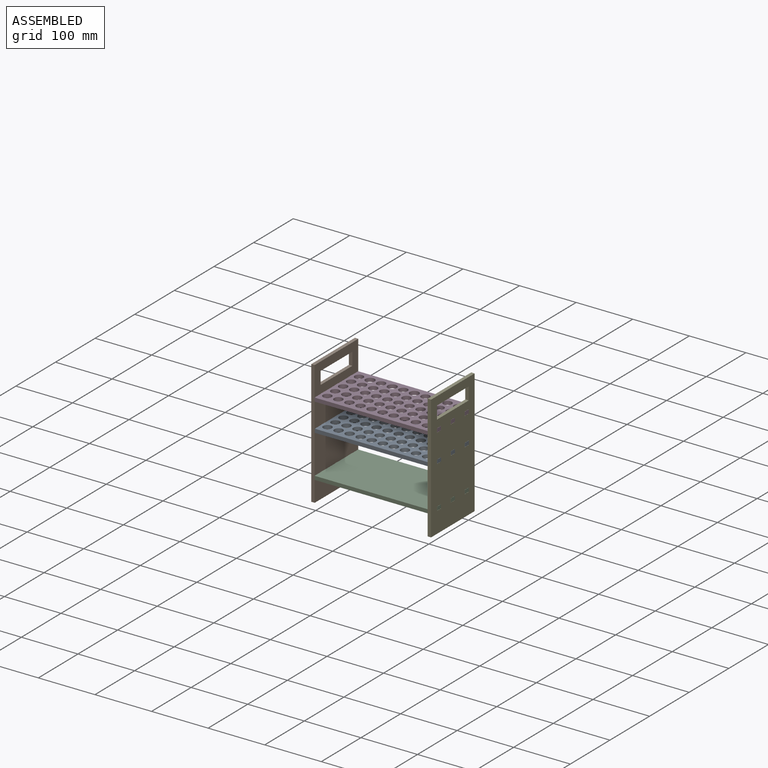
[diagram: assembled view]
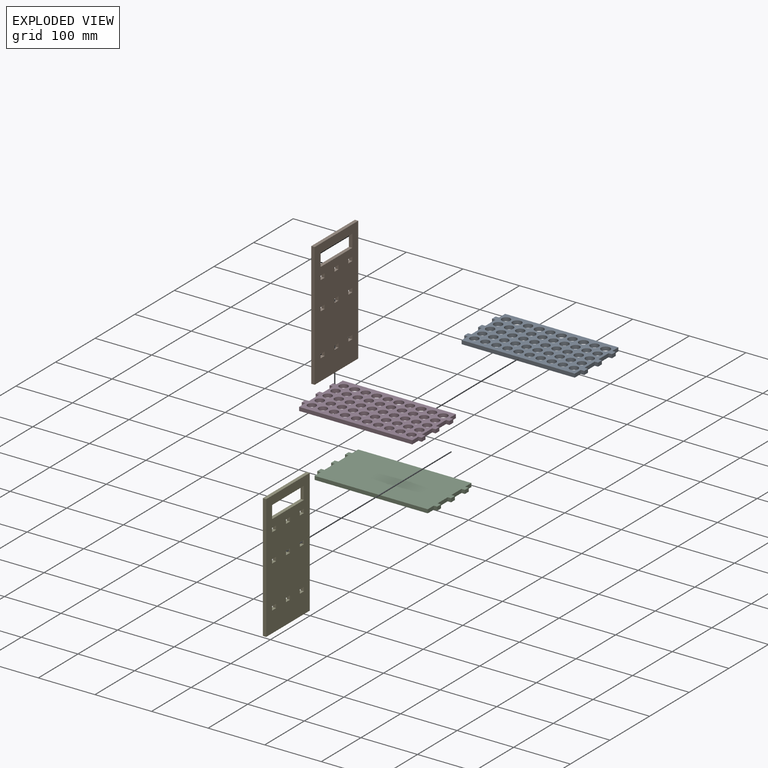
[diagram: exploded view]
GUIDED TOUR — MATED ASSEMBLY (Onshape document 3fb20cde70abd82131adbed9, AutoMate assembly 3fb20cde70abd82131adbed9_d9d2bc0faaa6cfbef1768d05_94ed03822dc0030f9c42033e_default)

This assembly has 5 components, labeled P0..P4 below (a component is one placed occurrence of a part; the same part can appear more than once), held together by 4 mates. A mate is a constraint between two components; its type names the relative motion it leaves free:
  FASTENED — locks the two components together rigidly (no relative motion).
Axis/direction vectors are unit vectors and 'through' points are millimeter coordinates, both in the assembly's world frame.

MATES
  1. FASTENED "Fastened 2": P0 <-> P1, direction (0.000, 1.000, 0.000) through (-113.23, -62.96, 53.62) mm
  2. FASTENED "Fastened 4": P4 <-> P2, direction (0.000, -1.000, 0.000) through (92.77, 6.54, -21.38) mm
  3. FASTENED "Fastened 1": P2 <-> P1, direction (0.000, -1.000, 0.000) through (-113.23, -72.96, -21.38) mm
  4. FASTENED "Fastened 3": P3 <-> P1, direction (0.000, -1.000, 0.000) through (-113.23, -72.96, 103.62) mm

ASSEMBLY ORDER
  1. P2 — the base component [order verified]
  2. P3 [order verified]
  3. P4 [order verified]
  4. P1 [order verified]
  5. P0 [order verified]
Order-tag legend:
  [order verified] — this step's position reverses a verified removal order: the component was checked to insert without passing through the ones already placed.

Of the 5 components, 3 carry the full construction recipe — the FeatureScript program that regenerates the part's solid from scratch; the rest are supplied as boundary geometry only.
Each toured component is shown spotlighted twice — in the assembled view, then in the exploded view, where a leader line traces a displaced component back to its assembled socket (saturated green if recipe-attached, orange if geometry-only; every other component desaturated gray) — followed by its recipe or geometry summary and the mates that hold it.
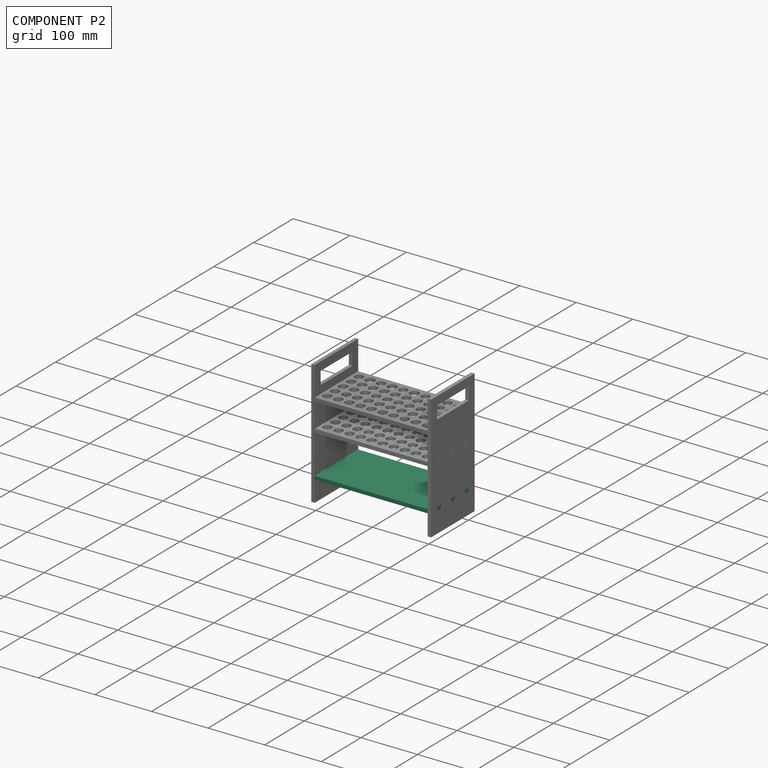
[diagram: component P2 — assembled]
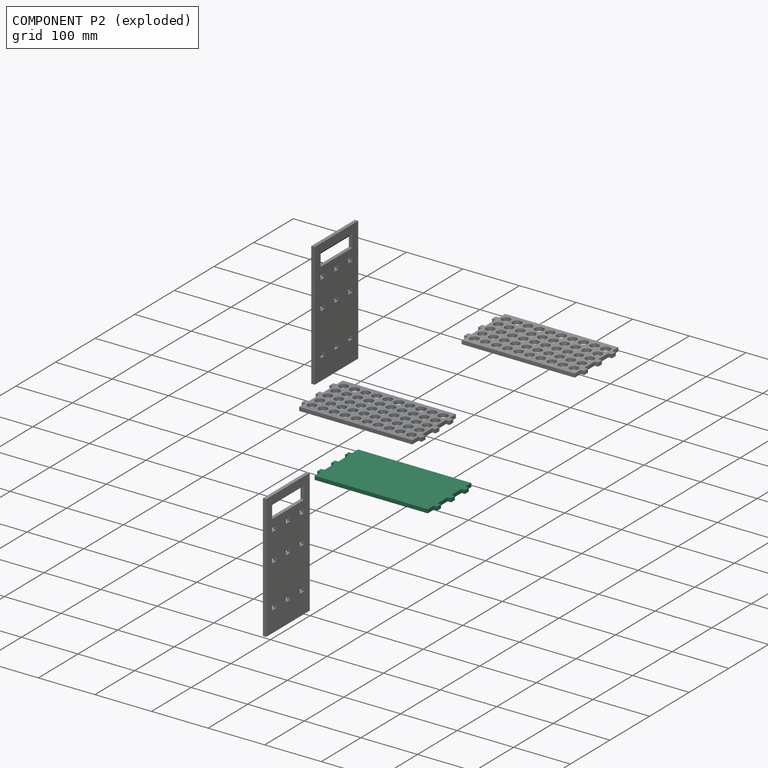
[diagram: component P2 — exploded]
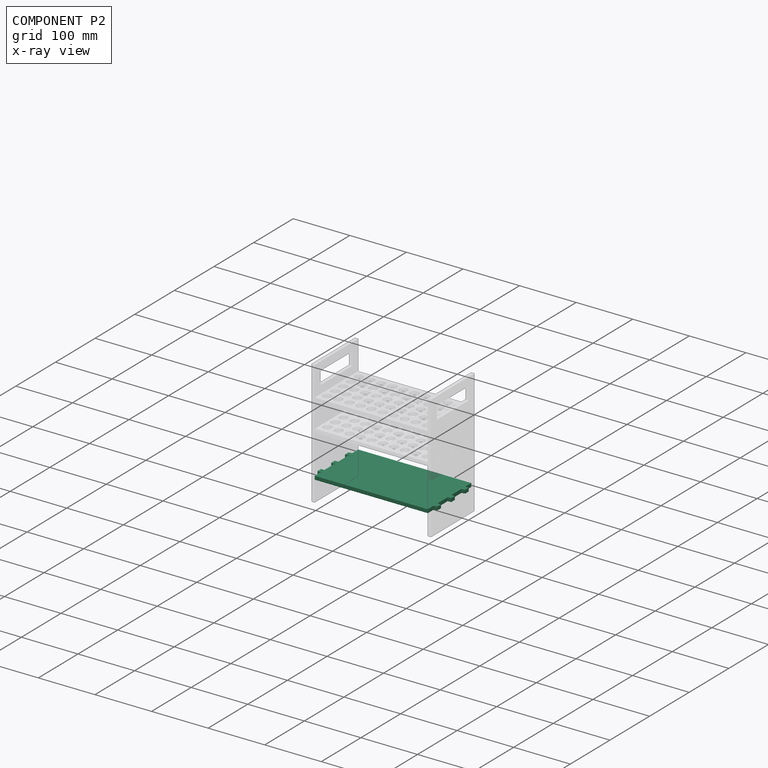
[diagram: component P2 — x-ray view]
COMPONENT P2 — recipe-attached (CADFS 00964119, mesh-verified: the recipe's output STEP matches this component's geometry to below the mesh-comparison resolution (tessellation chordal tolerance ~0.358 mm)).
Held by: FASTENED mate "Fastened 4" to P4; FASTENED mate "Fastened 1" to P1.
Construction recipe (FeatureScript — the CAD program that rebuilds this solid; sketch coordinates are in the units given by the * unit suffixes, e.g. mm):

FeatureScript 1511;
import(path : "onshape/std/geometry.fs", version : "1511.0");
import(path : "onshape/std/common.fs", version : "1511.0");
const mm = millimeter;
const VERTEX = EntityType.VERTEX;
const EDGE = EntityType.EDGE;
const FACE = EntityType.FACE;
const BODY = EntityType.BODY;
function v(x, y){return vector(x, y);}
function OD(order){return orderDisambiguation(order);}
function OSD(set){return originalSetDisambiguation(set);}
function TD(topology){return topologyDisambiguation(topology);}
function TDD(query){return trueDependencyDisambiguation(query);}
function sQuery(a, b, c) {return sketchEntityQuery(a, b, c);}

annotation { "Feature Type Name" : "Feature", "Feature Type Description" : "" }
export const myFeature = defineFeature(function(context is Context, id is Id, definition is map)
    precondition{}
    {
        {
            var Q0;
            Q0=qCreatedBy(makeId("Top.planeOp"),FACE);
            var sketch = newSketch(context, id + "F0", { "sketchPlane" : qUnion([Q0])});
            skLineSegment(sketch, "E0.bottom", {"start": v(-100, 55) * mm, "end": v(100, 55) * mm});
            skLineSegment(sketch, "E0.top", {"start": v(-100, -55) * mm, "end": v(100, -55) * mm});
            skLineSegment(sketch, "E0.left", {"start": v(-100, 55) * mm, "end": v(-100, -55) * mm});
            skLineSegment(sketch, "E0.right", {"start": v(100, 55) * mm, "end": v(100, -55) * mm});
            skPoint(sketch, "E0.middle", {"position": v(0, 0) * mm});
            skSolve(sketch);
        }
        {
            var Q0;
            Q0=makeQuery(id+"F0.imprint","IMPRINT",FACE,{"disambiguationData":[TD([[makeQuery(id+"F0.imprint","IMPRINT",EDGE,{"derivedFrom":sQuery(id+"F0.wireOp",EDGE,"E0.bottom")}),-1.0]])]});
            extrude(context, id + "F1", {"entities" : qUnion([Q0]), "depth" : 6.5 * mm, "offsetDistance" : 25 * mm});
        }
        {
            var Q0;
            Q0=makeQuery(id+"F1.opExtrude","SWEPT_FACE",FACE,{"disambiguationData":[OSD([sQuery(id+"F0.wireOp",EDGE,"E0.left")])]});
            var sketch = newSketch(context, id + "F2", { "sketchPlane" : qUnion([Q0])});
            skLineSegment(sketch, "E1", {"start": v(-55, 3.25) * mm, "end": v(-35, 3.25) * mm});
            skLineSegment(sketch, "E2", {"start": v(-35, 3.25) * mm, "end": v(0, 3.25) * mm});
            skLineSegment(sketch, "E3", {"start": v(0, 3.25) * mm, "end": v(35, 3.25) * mm});
            skLineSegment(sketch, "E4", {"start": v(35, 3.25) * mm, "end": v(55, 3.25) * mm});
            skLineSegment(sketch, "E5.bottom", {"start": v(-39.75, 6.5) * mm, "end": v(-30.25, 6.5) * mm});
            skLineSegment(sketch, "E5.top", {"start": v(-39.75, 0) * mm, "end": v(-30.25, 0) * mm});
            skLineSegment(sketch, "E5.left", {"start": v(-39.75, 6.5) * mm, "end": v(-39.75, 0) * mm});
            skLineSegment(sketch, "E5.right", {"start": v(-30.25, 6.5) * mm, "end": v(-30.25, 0) * mm});
            skPoint(sketch, "E5.middle", {"position": v(-35, 3.25) * mm});
            skLineSegment(sketch, "E6.bottom", {"start": v(-4.75, 6.5) * mm, "end": v(4.75, 6.5) * mm});
            skLineSegment(sketch, "E6.top", {"start": v(-4.75, 0) * mm, "end": v(4.75, 0) * mm});
            skLineSegment(sketch, "E6.left", {"start": v(-4.75, 6.5) * mm, "end": v(-4.75, 0) * mm});
            skLineSegment(sketch, "E6.right", {"start": v(4.75, 6.5) * mm, "end": v(4.75, 0) * mm});
            skPoint(sketch, "E6.middle", {"position": v(0, 3.25) * mm});
            skLineSegment(sketch, "E7.bottom", {"start": v(39.75, 6.5) * mm, "end": v(30.25, 6.5) * mm});
            skLineSegment(sketch, "E7.top", {"start": v(39.75, 0) * mm, "end": v(30.25, 0) * mm});
            skLineSegment(sketch, "E7.left", {"start": v(39.75, 6.5) * mm, "end": v(39.75, 0) * mm});
            skLineSegment(sketch, "E7.right", {"start": v(30.25, 6.5) * mm, "end": v(30.25, 0) * mm});
            skPoint(sketch, "E7.middle", {"position": v(35, 3.25) * mm});
            skSolve(sketch);
        }
        {
            var Q0;
            {var subQ0=sQuery(id+"F2.wireOp",EDGE,"E5.bottom");Q0=makeQuery(id+"F2.imprint","IMPRINT",FACE,{"disambiguationData":[TD([[makeQuery(id+"F2.imprint","IMPRINT",EDGE,{"derivedFrom":subQ0}),-1.0]])]});}
            var Q1;
            {var subQ1=sQuery(id+"F2.wireOp",EDGE,"E5.top");Q1=makeQuery(id+"F2.imprint","IMPRINT",FACE,{"disambiguationData":[TD([[makeQuery(id+"F2.imprint","IMPRINT",EDGE,{"derivedFrom":subQ1}),1.0]])]});}
            var Q2;
            {var subQ1=sQuery(id+"F2.wireOp",EDGE,"E6.bottom");Q2=makeQuery(id+"F2.imprint","IMPRINT",FACE,{"disambiguationData":[TD([[makeQuery(id+"F2.imprint","IMPRINT",EDGE,{"derivedFrom":subQ1}),-1.0]])]});}
            var Q3;
            {var subQ0=sQuery(id+"F2.wireOp",EDGE,"E6.top");Q3=makeQuery(id+"F2.imprint","IMPRINT",FACE,{"disambiguationData":[TD([[makeQuery(id+"F2.imprint","IMPRINT",EDGE,{"derivedFrom":subQ0}),1.0]])]});}
            var Q4;
            {var subQ1=sQuery(id+"F2.wireOp",EDGE,"E7.bottom");Q4=makeQuery(id+"F2.imprint","IMPRINT",FACE,{"disambiguationData":[TD([[makeQuery(id+"F2.imprint","IMPRINT",EDGE,{"derivedFrom":subQ1}),-1.0]])]});}
            var Q5;
            {var subQ1=sQuery(id+"F2.wireOp",EDGE,"E7.top");Q5=makeQuery(id+"F2.imprint","IMPRINT",FACE,{"disambiguationData":[TD([[makeQuery(id+"F2.imprint","IMPRINT",EDGE,{"derivedFrom":subQ1}),1.0]])]});}
            extrude(context, id + "F3", {"entities" : qUnion([Q0, Q1, Q2, Q3, Q4, Q5]), "operationType" : NewBodyOperationType.ADD, "depth" : 6 * mm, "offsetDistance" : 25 * mm});
        }
        {
            var Q0;
            Q0=makeQuery(id+"F1.opExtrude","SWEPT_FACE",FACE,{"disambiguationData":[OSD([sQuery(id+"F0.wireOp",EDGE,"E0.right")])]});
            var sketch = newSketch(context, id + "F4", { "sketchPlane" : qUnion([Q0])});
            skLineSegment(sketch, "E8", {"start": v(-55, 3.25) * mm, "end": v(-35, 3.25) * mm});
            skLineSegment(sketch, "E9", {"start": v(-35, 3.25) * mm, "end": v(0, 3.25) * mm});
            skLineSegment(sketch, "E10", {"start": v(0, 3.25) * mm, "end": v(35, 3.25) * mm});
            skLineSegment(sketch, "E11.bottom", {"start": v(-39.75, 6.5) * mm, "end": v(-30.25, 6.5) * mm});
            skLineSegment(sketch, "E11.top", {"start": v(-39.75, 0) * mm, "end": v(-30.25, 0) * mm});
            skLineSegment(sketch, "E11.left", {"start": v(-39.75, 6.5) * mm, "end": v(-39.75, 0) * mm});
            skLineSegment(sketch, "E11.right", {"start": v(-30.25, 6.5) * mm, "end": v(-30.25, 0) * mm});
            skPoint(sketch, "E11.middle", {"position": v(-35, 3.25) * mm});
            skLineSegment(sketch, "E12.bottom", {"start": v(-4.75, 6.5) * mm, "end": v(4.75, 6.5) * mm});
            skLineSegment(sketch, "E12.top", {"start": v(-4.75, 0) * mm, "end": v(4.75, 0) * mm});
            skLineSegment(sketch, "E12.left", {"start": v(-4.75, 6.5) * mm, "end": v(-4.75, 0) * mm});
            skLineSegment(sketch, "E12.right", {"start": v(4.75, 6.5) * mm, "end": v(4.75, 0) * mm});
            skPoint(sketch, "E12.middle", {"position": v(0, 3.25) * mm});
            skLineSegment(sketch, "E13.bottom", {"start": v(39.75, 6.5) * mm, "end": v(30.25, 6.5) * mm});
            skLineSegment(sketch, "E13.top", {"start": v(39.75, 0) * mm, "end": v(30.25, 0) * mm});
            skLineSegment(sketch, "E13.left", {"start": v(39.75, 6.5) * mm, "end": v(39.75, 0) * mm});
            skLineSegment(sketch, "E13.right", {"start": v(30.25, 6.5) * mm, "end": v(30.25, 0) * mm});
            skPoint(sketch, "E13.middle", {"position": v(35, 3.25) * mm});
            skSolve(sketch);
        }
        {
            var Q0;
            {var subQ1=sQuery(id+"F4.wireOp",EDGE,"E11.bottom");Q0=makeQuery(id+"F4.imprint","IMPRINT",FACE,{"disambiguationData":[TD([[makeQuery(id+"F4.imprint","IMPRINT",EDGE,{"derivedFrom":subQ1}),1.0]])]});}
            var Q1;
            {var subQ1=sQuery(id+"F4.wireOp",EDGE,"E11.top");Q1=makeQuery(id+"F4.imprint","IMPRINT",FACE,{"disambiguationData":[TD([[makeQuery(id+"F4.imprint","IMPRINT",EDGE,{"derivedFrom":subQ1}),-1.0]])]});}
            var Q2;
            {var subQ0=sQuery(id+"F4.wireOp",EDGE,"E12.bottom");Q2=makeQuery(id+"F4.imprint","IMPRINT",FACE,{"disambiguationData":[TD([[makeQuery(id+"F4.imprint","IMPRINT",EDGE,{"derivedFrom":subQ0}),1.0]])]});}
            var Q3;
            {var subQ1=sQuery(id+"F4.wireOp",EDGE,"E12.top");Q3=makeQuery(id+"F4.imprint","IMPRINT",FACE,{"disambiguationData":[TD([[makeQuery(id+"F4.imprint","IMPRINT",EDGE,{"derivedFrom":subQ1}),-1.0]])]});}
            var Q4;
            {var subQ1=sQuery(id+"F4.wireOp",EDGE,"E13.bottom");Q4=makeQuery(id+"F4.imprint","IMPRINT",FACE,{"disambiguationData":[TD([[makeQuery(id+"F4.imprint","IMPRINT",EDGE,{"derivedFrom":subQ1}),1.0]])]});}
            extrude(context, id + "F5", {"entities" : qUnion([Q0, Q1, Q2, Q3, Q4]), "operationType" : NewBodyOperationType.ADD, "depth" : 6 * mm, "offsetDistance" : 25 * mm});
        }
    });
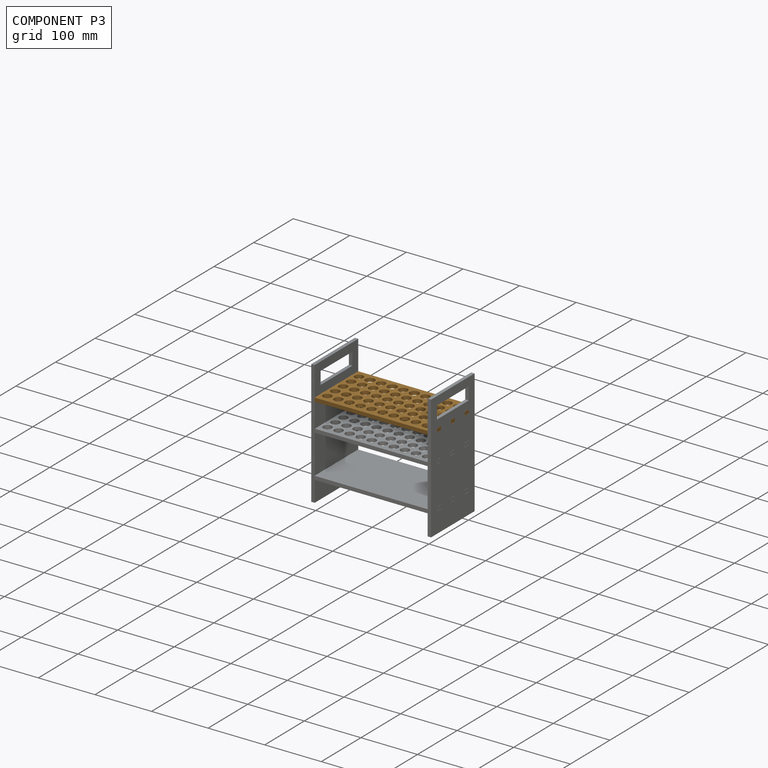
[diagram: component P3 — assembled]
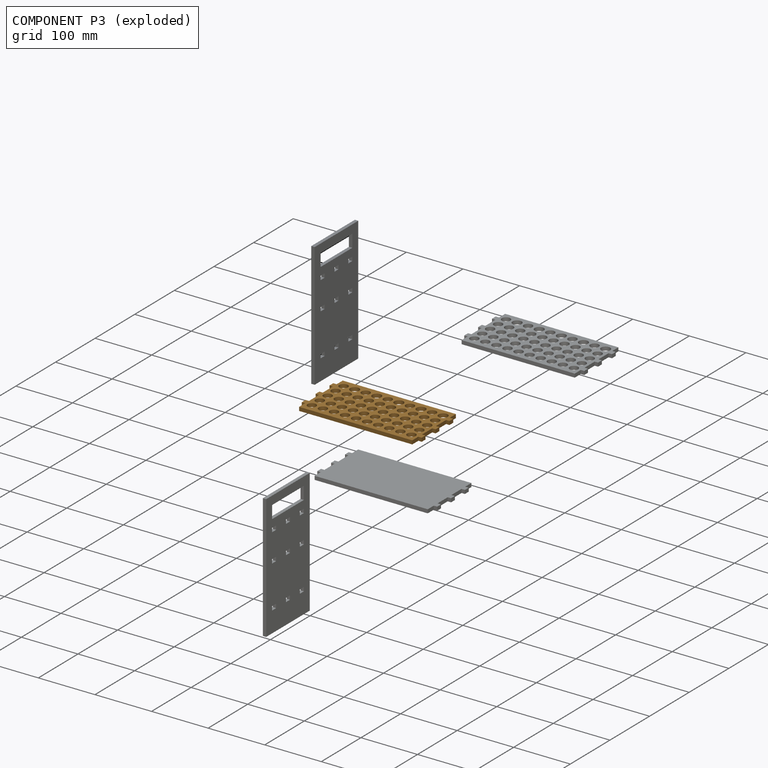
[diagram: component P3 — exploded]
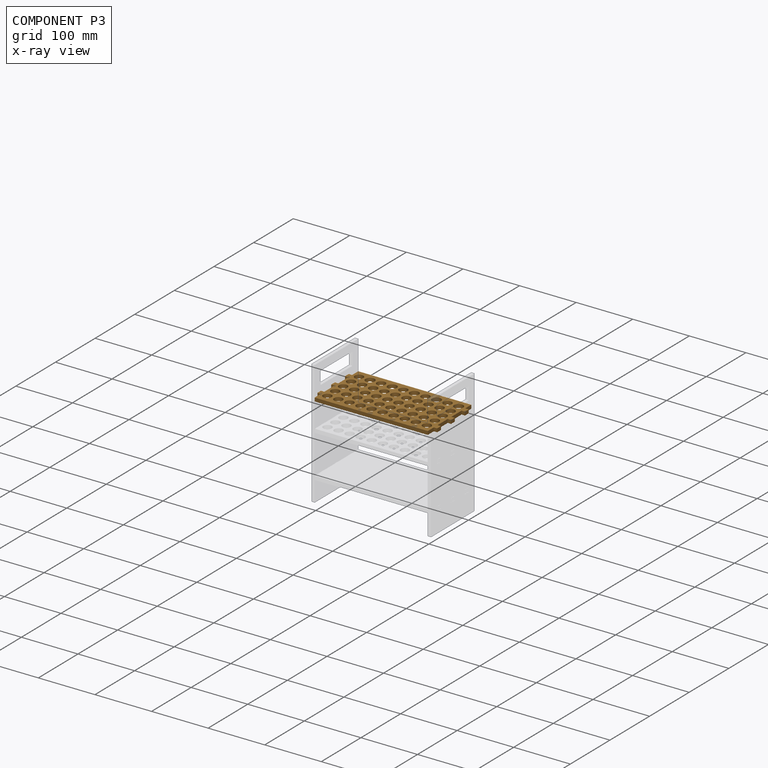
[diagram: component P3 — x-ray view]
COMPONENT P3 — geometry summary (no construction recipe available for this part):
  bounding box: 212.0 x 110.0 x 6.5 mm
  B-rep topology: 1 solid, 80 faces, 508 edges
  volume: 87016 mm^3 (57% of its bounding box)
  symmetry: 2-fold rotationally symmetric about the x axis; 2-fold rotationally symmetric about the y axis; 2-fold rotationally symmetric about the z axis; mirror-symmetric across its x mid-plane, y mid-plane, z mid-plane
Held by: FASTENED mate "Fastened 3" to P1.
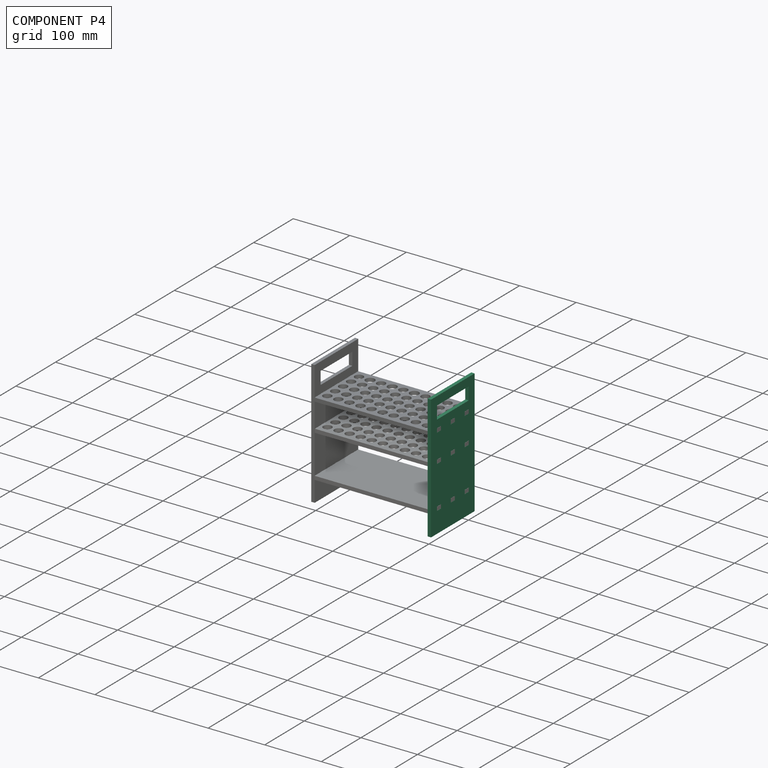
[diagram: component P4 — assembled]
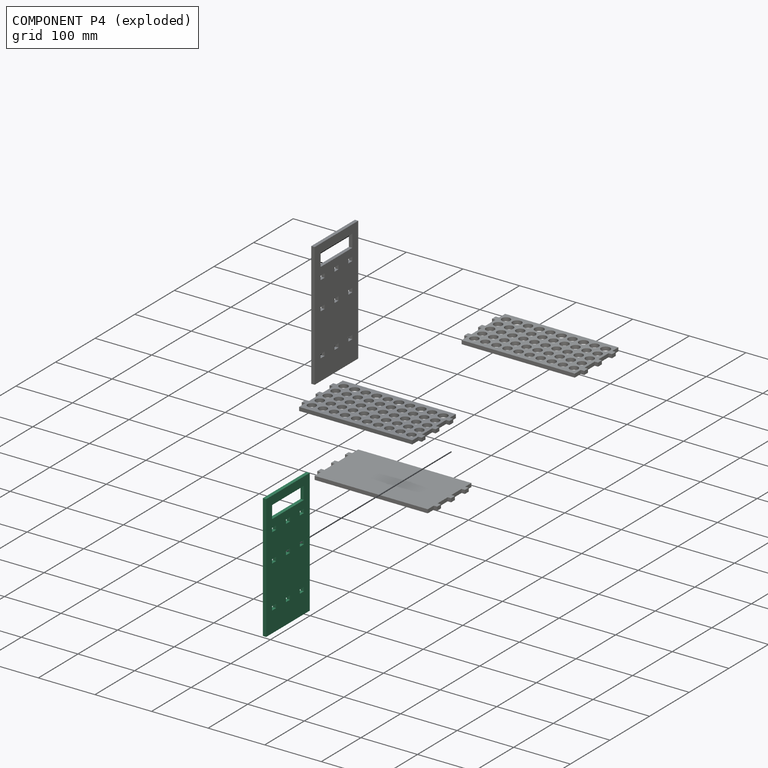
[diagram: component P4 — exploded]
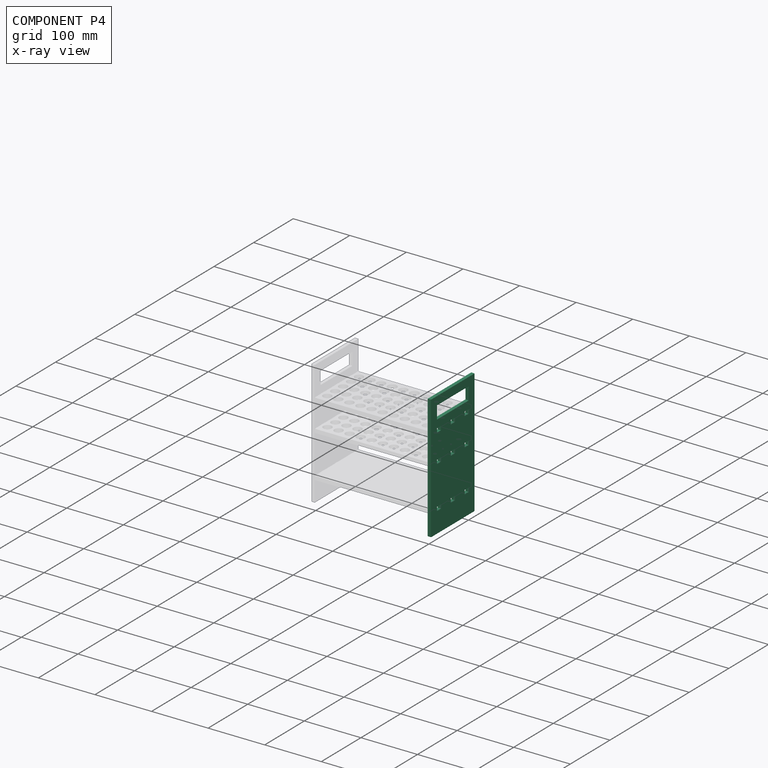
[diagram: component P4 — x-ray view]
COMPONENT P4 — same part as P1 (CADFS 00964117); its construction recipe is shown at P1.
Held by: FASTENED mate "Fastened 4" to P2.
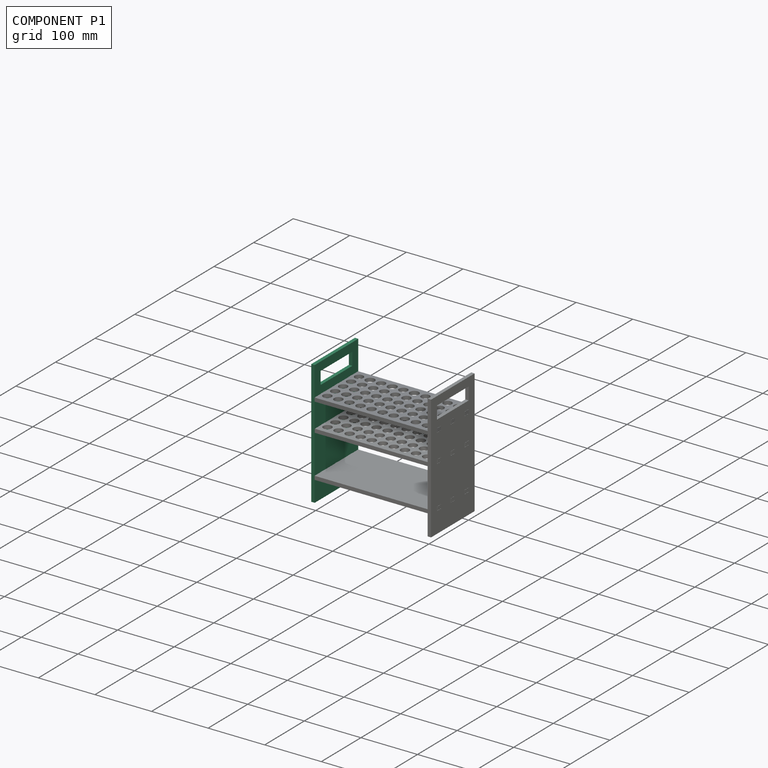
[diagram: component P1 — assembled]
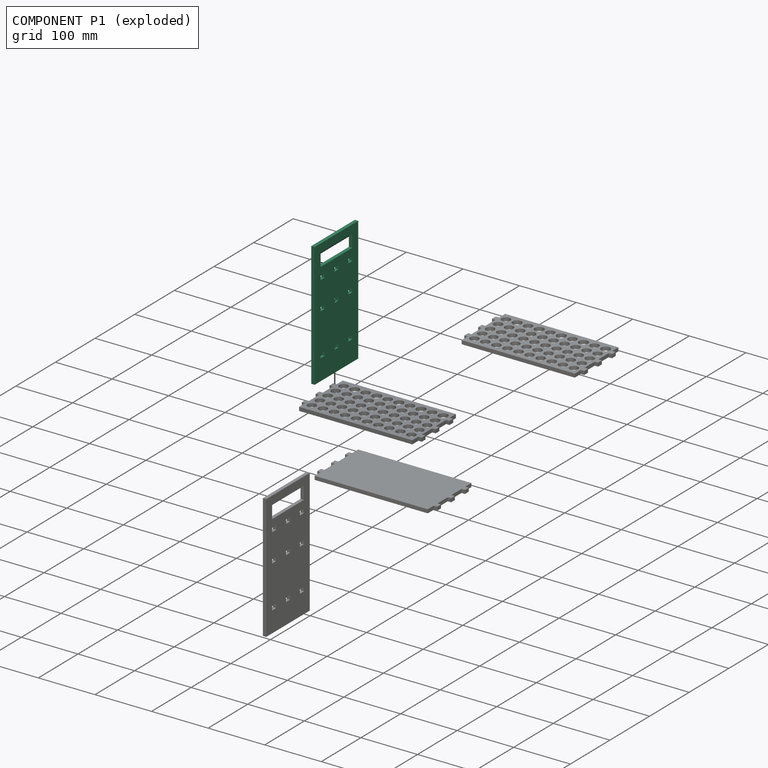
[diagram: component P1 — exploded]
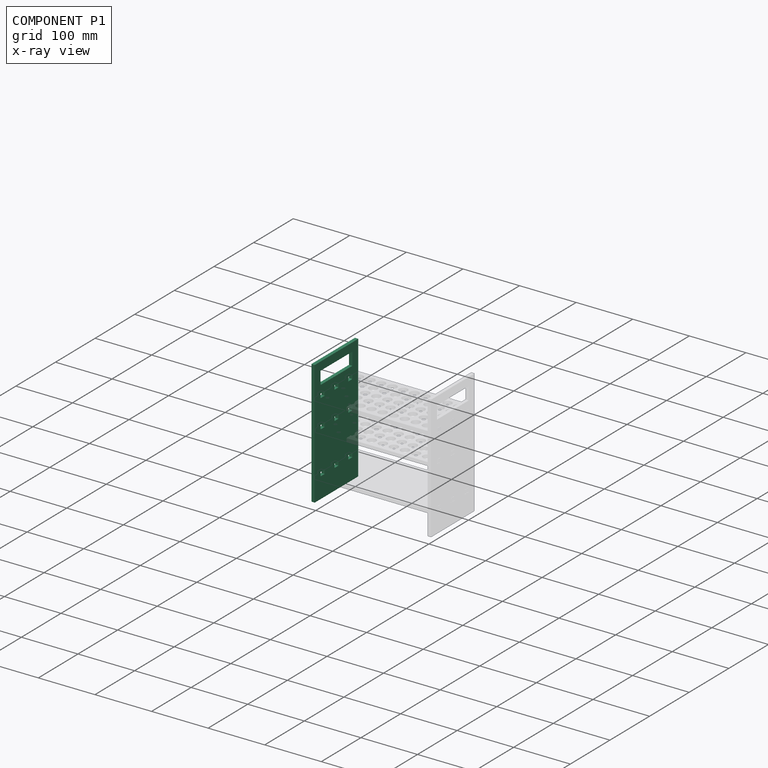
[diagram: component P1 — x-ray view]
COMPONENT P1 — recipe-attached (CADFS 00964117, mesh-verified: the recipe's output STEP matches this component's geometry to below the mesh-comparison resolution (tessellation chordal tolerance ~0.369 mm)).
Held by: FASTENED mate "Fastened 2" to P0; FASTENED mate "Fastened 1" to P2; FASTENED mate "Fastened 3" to P3.
Construction recipe (FeatureScript — the CAD program that rebuilds this solid; sketch coordinates are in the units given by the * unit suffixes, e.g. mm):

FeatureScript 1511;
import(path : "onshape/std/geometry.fs", version : "1511.0");
import(path : "onshape/std/common.fs", version : "1511.0");
const mm = millimeter;
const VERTEX = EntityType.VERTEX;
const EDGE = EntityType.EDGE;
const FACE = EntityType.FACE;
const BODY = EntityType.BODY;
function v(x, y){return vector(x, y);}
function OD(order){return orderDisambiguation(order);}
function OSD(set){return originalSetDisambiguation(set);}
function TD(topology){return topologyDisambiguation(topology);}
function TDD(query){return trueDependencyDisambiguation(query);}
function sQuery(a, b, c) {return sketchEntityQuery(a, b, c);}

annotation { "Feature Type Name" : "Feature", "Feature Type Description" : "" }
export const myFeature = defineFeature(function(context is Context, id is Id, definition is map)
    precondition{}
    {
        {
            var Q0;
            Q0=qCreatedBy(makeId("Right.planeOp"),FACE);
            var sketch = newSketch(context, id + "F0", { "sketchPlane" : qUnion([Q0])});
            skLineSegment(sketch, "E0.bottom", {"start": v(-47.5, 157.22) * mm, "end": v(62.5, 157.22) * mm});
            skLineSegment(sketch, "E0.top", {"start": v(-47.5, -62.78) * mm, "end": v(62.5, -62.78) * mm});
            skLineSegment(sketch, "E0.left", {"start": v(-47.5, 157.22) * mm, "end": v(-47.5, -62.78) * mm});
            skLineSegment(sketch, "E0.right", {"start": v(62.5, 157.22) * mm, "end": v(62.5, -62.78) * mm});
            skLineSegment(sketch, "E1.bottom", {"start": v(37.5, -19.28) * mm, "end": v(47.5, -19.28) * mm});
            skLineSegment(sketch, "E1.top", {"start": v(37.5, -26.28) * mm, "end": v(47.5, -26.28) * mm});
            skLineSegment(sketch, "E1.left", {"start": v(37.5, -19.28) * mm, "end": v(37.5, -26.28) * mm});
            skLineSegment(sketch, "E1.right", {"start": v(47.5, -19.28) * mm, "end": v(47.5, -26.28) * mm});
            skPoint(sketch, "E1.middle", {"position": v(42.5, -22.78) * mm});
            skLineSegment(sketch, "E2.bottom", {"start": v(2.5, -19.28) * mm, "end": v(12.5, -19.28) * mm});
            skLineSegment(sketch, "E2.top", {"start": v(2.5, -26.28) * mm, "end": v(12.5, -26.28) * mm});
            skLineSegment(sketch, "E2.left", {"start": v(2.5, -19.28) * mm, "end": v(2.5, -26.28) * mm});
            skLineSegment(sketch, "E2.right", {"start": v(12.5, -19.28) * mm, "end": v(12.5, -26.28) * mm});
            skPoint(sketch, "E2.middle", {"position": v(7.5, -22.78) * mm});
            skLineSegment(sketch, "E3.bottom", {"start": v(-22.5, -19.28) * mm, "end": v(-32.5, -19.28) * mm});
            skLineSegment(sketch, "E3.top", {"start": v(-22.5, -26.28) * mm, "end": v(-32.5, -26.28) * mm});
            skLineSegment(sketch, "E3.left", {"start": v(-22.5, -19.28) * mm, "end": v(-22.5, -26.28) * mm});
            skLineSegment(sketch, "E3.right", {"start": v(-32.5, -19.28) * mm, "end": v(-32.5, -26.28) * mm});
            skPoint(sketch, "E3.middle", {"position": v(-27.5, -22.78) * mm});
            skLineSegment(sketch, "E4", {"start": v(-27.5, -22.78) * mm, "end": v(42.5, -22.78) * mm});
            skLineSegment(sketch, "E5", {"start": v(-47.5, 130.37) * mm, "end": v(-32.5, 130.37) * mm});
            skLineSegment(sketch, "E6", {"start": v(62.5, 129.84) * mm, "end": v(47.5, 129.84) * mm});
            skLineSegment(sketch, "E7", {"start": v(9.43, 157.22) * mm, "end": v(9.43, 142.22) * mm});
            skLineSegment(sketch, "E8", {"start": v(9.43, 142.22) * mm, "end": v(-32.5, 142.22) * mm});
            skLineSegment(sketch, "E9", {"start": v(-32.5, 142.22) * mm, "end": v(-32.5, 119.72) * mm});
            skLineSegment(sketch, "E10", {"start": v(-32.5, 119.72) * mm, "end": v(47.5, 119.72) * mm});
            skLineSegment(sketch, "E11", {"start": v(47.5, 119.72) * mm, "end": v(47.5, 142.22) * mm});
            skLineSegment(sketch, "E12", {"start": v(47.5, 142.22) * mm, "end": v(9.43, 142.22) * mm});
            skLineSegment(sketch, "E13", {"start": v(30.25, -22.78) * mm, "end": v(30.25, 14.72) * mm});
            skLineSegment(sketch, "E14", {"start": v(30.25, 14.72) * mm, "end": v(-3.72, 14.72) * mm});
            skLineSegment(sketch, "E15.MirrorCS", {"start": v(37.5, 55.72) * mm, "end": v(47.5, 55.72) * mm});
            skLineSegment(sketch, "E16.MirrorCS", {"start": v(-32.5, 48.72) * mm, "end": v(-32.5, 55.72) * mm});
            skLineSegment(sketch, "E17.MirrorCS", {"start": v(37.5, 48.72) * mm, "end": v(37.5, 55.72) * mm});
            skLineSegment(sketch, "E18.MirrorCS", {"start": v(-22.5, 55.72) * mm, "end": v(-32.5, 55.72) * mm});
            skLineSegment(sketch, "E19.MirrorCS", {"start": v(2.5, 48.72) * mm, "end": v(2.5, 55.72) * mm});
            skLineSegment(sketch, "E20.MirrorCS", {"start": v(2.5, 55.72) * mm, "end": v(12.5, 55.72) * mm});
            skLineSegment(sketch, "E21.MirrorCS", {"start": v(37.5, 48.72) * mm, "end": v(47.5, 48.72) * mm});
            skLineSegment(sketch, "E22.MirrorCS", {"start": v(2.5, 48.72) * mm, "end": v(12.5, 48.72) * mm});
            skLineSegment(sketch, "E23.MirrorCS", {"start": v(-22.5, 48.72) * mm, "end": v(-22.5, 55.72) * mm});
            skLineSegment(sketch, "E24.MirrorCS", {"start": v(-22.5, 48.72) * mm, "end": v(-32.5, 48.72) * mm});
            skPoint(sketch, "E25.MirrorP", {"position": v(7.5, 52.22) * mm});
            skPoint(sketch, "E26.MirrorP", {"position": v(-27.5, 52.22) * mm});
            skPoint(sketch, "E27.MirrorP", {"position": v(42.5, 52.22) * mm});
            skLineSegment(sketch, "E28.MirrorCS", {"start": v(47.5, 48.72) * mm, "end": v(47.5, 55.72) * mm});
            skLineSegment(sketch, "E29.MirrorCS", {"start": v(-27.5, 52.22) * mm, "end": v(42.5, 52.22) * mm});
            skLineSegment(sketch, "E30.MirrorCS", {"start": v(12.5, 48.72) * mm, "end": v(12.5, 55.72) * mm});
            skLineSegment(sketch, "E31", {"start": v(24, 52.22) * mm, "end": v(24, 77.22) * mm});
            skLineSegment(sketch, "E32", {"start": v(24, 77.22) * mm, "end": v(-2.6, 77.22) * mm});
            skLineSegment(sketch, "E33.MirrorCS", {"start": v(-22.5, 98.72) * mm, "end": v(-32.5, 98.72) * mm});
            skLineSegment(sketch, "E34.MirrorCS", {"start": v(12.5, 105.72) * mm, "end": v(12.5, 98.72) * mm});
            skLineSegment(sketch, "E35.MirrorCS", {"start": v(37.5, 98.72) * mm, "end": v(47.5, 98.72) * mm});
            skLineSegment(sketch, "E36.MirrorCS", {"start": v(2.5, 98.72) * mm, "end": v(12.5, 98.72) * mm});
            skLineSegment(sketch, "E37.MirrorCS", {"start": v(2.5, 105.72) * mm, "end": v(12.5, 105.72) * mm});
            skLineSegment(sketch, "E38.MirrorCS", {"start": v(37.5, 105.72) * mm, "end": v(47.5, 105.72) * mm});
            skLineSegment(sketch, "E39.MirrorCS", {"start": v(-22.5, 105.72) * mm, "end": v(-22.5, 98.72) * mm});
            skPoint(sketch, "E40.MirrorP", {"position": v(42.5, 102.22) * mm});
            skLineSegment(sketch, "E41.MirrorCS", {"start": v(2.5, 105.72) * mm, "end": v(2.5, 98.72) * mm});
            skLineSegment(sketch, "E42.MirrorCS", {"start": v(47.5, 105.72) * mm, "end": v(47.5, 98.72) * mm});
            skLineSegment(sketch, "E43.MirrorCS", {"start": v(-32.5, 105.72) * mm, "end": v(-32.5, 98.72) * mm});
            skPoint(sketch, "E44.MirrorP", {"position": v(7.5, 102.22) * mm});
            skPoint(sketch, "E45.MirrorP", {"position": v(-27.5, 102.22) * mm});
            skLineSegment(sketch, "E46.MirrorCS", {"start": v(37.5, 105.72) * mm, "end": v(37.5, 98.72) * mm});
            skLineSegment(sketch, "E47.MirrorCS", {"start": v(-27.5, 102.22) * mm, "end": v(42.5, 102.22) * mm});
            skLineSegment(sketch, "E48.MirrorCS", {"start": v(-22.5, 105.72) * mm, "end": v(-32.5, 105.72) * mm});
            skSolve(sketch);
        }
        {
            var Q0;
            {var subQ1=sQuery(id+"F0.wireOp",EDGE,"E5");Q0=makeQuery(id+"F0.imprint","IMPRINT",FACE,{"disambiguationData":[TD([[makeQuery(id+"F0.imprint","IMPRINT",EDGE,{"derivedFrom":subQ1}),1.0]])]});}
            var Q1;
            {var subQ0=sQuery(id+"F0.wireOp",EDGE,"E6");Q1=makeQuery(id+"F0.imprint","IMPRINT",FACE,{"disambiguationData":[TD([[makeQuery(id+"F0.imprint","IMPRINT",EDGE,{"derivedFrom":subQ0}),-1.0]])]});}
            var Q2;
            {var subQ38=sQuery(id+"F0.wireOp",EDGE,"E0.top");Q2=makeQuery(id+"F0.imprint","IMPRINT",FACE,{"disambiguationData":[TD([[makeQuery(id+"F0.imprint","IMPRINT",EDGE,{"derivedFrom":subQ38}),1.0]])]});}
            extrude(context, id + "F1", {"entities" : qUnion([Q0, Q1, Q2]), "depth" : 6 * mm, "offsetDistance" : 25 * mm});
        }
    });
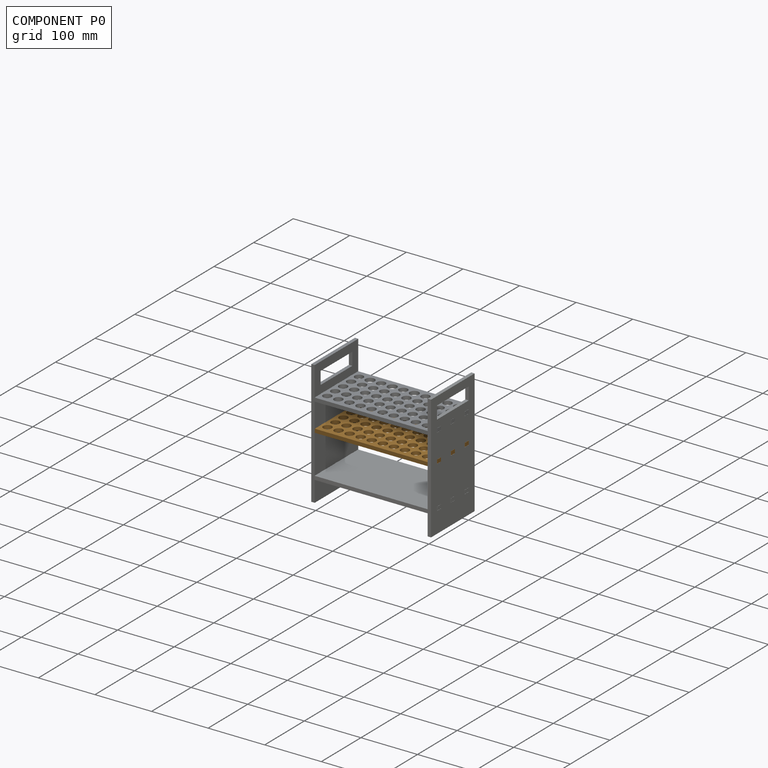
[diagram: component P0 — assembled]
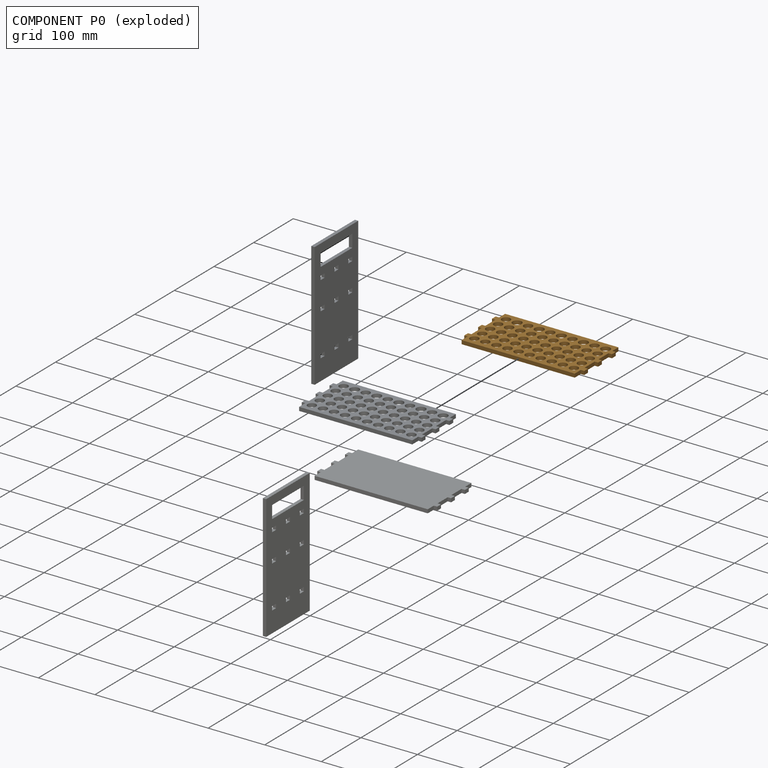
[diagram: component P0 — exploded]
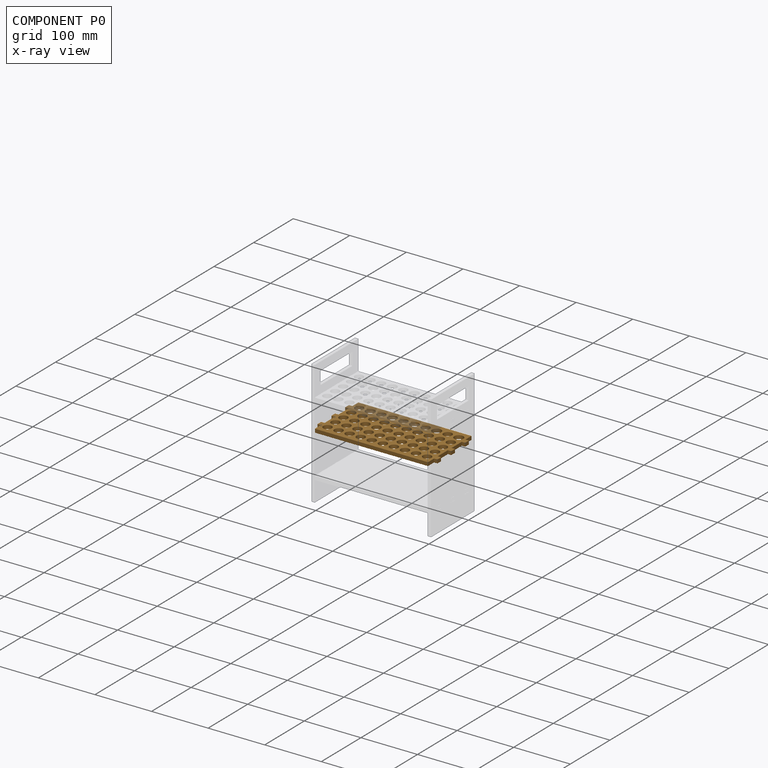
[diagram: component P0 — x-ray view]
COMPONENT P0 — geometry summary (no construction recipe available for this part):
  bounding box: 212.0 x 110.0 x 6.5 mm
  B-rep topology: 1 solid, 80 faces, 508 edges
  volume: 87016 mm^3 (57% of its bounding box)
  symmetry: 2-fold rotationally symmetric about the x axis; 2-fold rotationally symmetric about the y axis; 2-fold rotationally symmetric about the z axis; mirror-symmetric across its x mid-plane, y mid-plane, z mid-plane
Held by: FASTENED mate "Fastened 2" to P1.
PROVENANCE & LICENSES
Assembly (occurrences, transforms, mates, per-part STEP geometry): AutoMate dataset, Zenodo record 7776208, CC0.
Construction recipes: CADFS (HuggingFace VladPyatov/CADFS, CC-BY-4.0, layered over the ABC dataset), FeatureScript reconstruction programs keyed by ABC model id.
Join: ABC meta listings map ABC model id -> Onshape documentId; within a shared document, parts are matched by geometric signature (bounding-box dims + volume at 0.1% relative tolerance, exact B-rep face/solid counts).
Verification: 3 of this assembly's 5 components carry a recipe attachment, and every attachment is mesh-verified: the CADFS STEP and the AutoMate member STEP were compared as meshes in their shared local frame (symmetric sampled-point-to-mesh distance); worst across the 3 attachments: below the mesh-comparison resolution (tessellation chordal tolerance ~0.369 mm) on a 246 mm part.
Renders: orthographic iso camera (az 35 / el 25); the floor grid conveys scale (grid pitch printed in each image; no ruler). In the exploded view each component is displaced by its stored offset vector: the offsets alone carry the explosion direction (mate normal/axis signs are not orientation cues and do not encode it), and separation distances are assigned per mate-chain, not proportionally to assembly-order depth.
